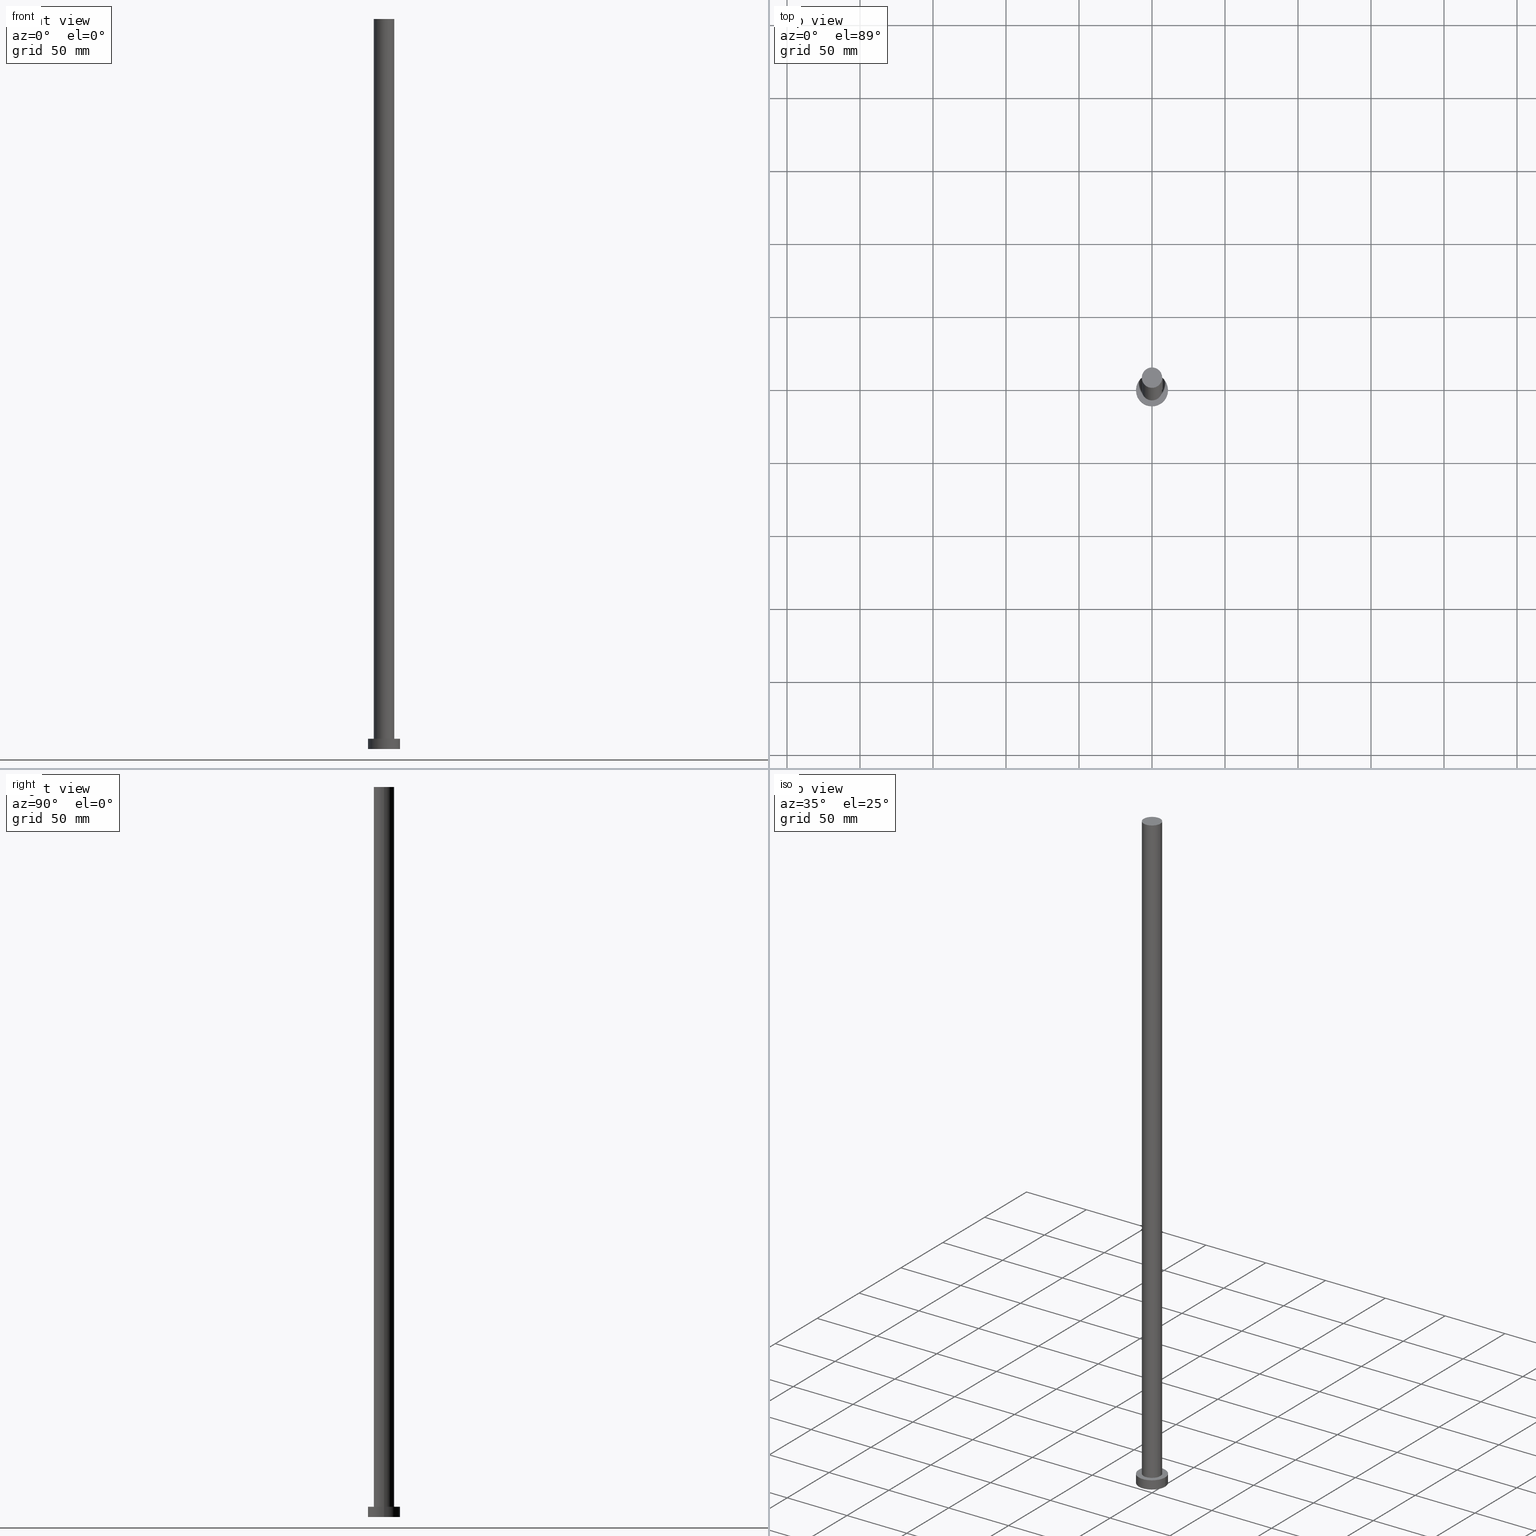
[diagram: canonical four-view strip — front | top / right | iso, engineering-drawing reading convention]
A machine part, canonical four-view strip (front | top / right | iso — engineering-drawing reading convention). The complete STEP part file that produces these views, byte-faithful:
ISO-10303-21;
HEADER;
FILE_DESCRIPTION (( 'STEP AP203' ),
    '1' );
FILE_NAME ('988a.STEP',
    '2023-02-13T08:54:24',
    ( '' ),
    ( '' ),
    'SwSTEP 2.0',
    'SolidWorks 2019',
    '' );
FILE_SCHEMA (( 'CONFIG_CONTROL_DESIGN' ));
ENDSEC;

DATA;
#1 = CARTESIAN_POINT ( 'NONE',  ( 0.000000000000000000, 0.000000000000000000, 0.000000000000000000 ) ) ;
#2 = PRODUCT ( '988a', '988a', '', ( #247 ) ) ;
#3 = AXIS2_PLACEMENT_3D ( 'NONE', #177, #134, #78 ) ;
#4 = DATE_AND_TIME ( #96, #98 ) ;
#5 = PERSON_AND_ORGANIZATION ( #62, #211 ) ;
#6 = PERSON_AND_ORGANIZATION ( #62, #211 ) ;
#7 = DIRECTION ( 'NONE',  ( 0.000000000000000000, 0.000000000000000000, 1.000000000000000000 ) ) ;
#8 = EDGE_LOOP ( 'NONE', ( #123, #255, #244, #43 ) ) ;
#9 = CARTESIAN_POINT ( 'NONE',  ( 0.000000000000000000, 0.000000000000000000, 0.000000000000000000 ) ) ;
#10 = APPROVAL_PERSON_ORGANIZATION ( #99, #222, #137 ) ;
#11 = APPROVAL_PERSON_ORGANIZATION ( #249, #176, #172 ) ;
#12 = DIRECTION ( 'NONE',  ( 1.000000000000000000, 0.000000000000000000, 0.000000000000000000 ) ) ;
#13 = VERTEX_POINT ( 'NONE', #170 ) ;
#14 = DATE_TIME_ROLE ( 'classification_date' ) ;
#15 = FACE_OUTER_BOUND ( 'NONE', #199, .T. ) ;
#16 = AXIS2_PLACEMENT_3D ( 'NONE', #113, #82, #114 ) ;
#17 = FACE_OUTER_BOUND ( 'NONE', #71, .T. ) ;
#18 = LOCAL_TIME ( 9, 54, 24.00000000000000000, #153 ) ;
#19 = EDGE_CURVE ( 'NONE', #141, #131, #232, .T. ) ;
#20 = DIRECTION ( 'NONE',  ( -0.000000000000000000, -0.000000000000000000, -1.000000000000000000 ) ) ;
#21 = CC_DESIGN_PERSON_AND_ORGANIZATION_ASSIGNMENT ( #61, #162, ( #2 ) ) ;
#22 = ORIENTED_EDGE ( 'NONE', *, *, #210, .F. ) ;
#23 = APPROVAL_DATE_TIME ( #121, #222 ) ;
#24 = DIRECTION ( 'NONE',  ( 0.000000000000000000, 0.000000000000000000, 1.000000000000000000 ) ) ;
#25 = CARTESIAN_POINT ( 'NONE',  ( 0.000000000000000000, 0.000000000000000000, 500.0000000000000000 ) ) ;
#26 = DATE_AND_TIME ( #80, #243 ) ;
#27 = ORIENTED_EDGE ( 'NONE', *, *, #210, .T. ) ;
#28 = APPLICATION_CONTEXT ( 'configuration controlled 3d designs of mechanical parts and assemblies' ) ;
#29 = LINE ( 'NONE', #173, #60 ) ;
#30 = CC_DESIGN_DATE_AND_TIME_ASSIGNMENT ( #35, #14, ( #182 ) ) ;
#31 = DIRECTION ( 'NONE',  ( -0.000000000000000000, -0.000000000000000000, -1.000000000000000000 ) ) ;
#32 = DIRECTION ( 'NONE',  ( 0.000000000000000000, 0.000000000000000000, 1.000000000000000000 ) ) ;
#33 = CC_DESIGN_APPROVAL ( #176, ( #191 ) ) ;
#34 = ORIENTED_EDGE ( 'NONE', *, *, #81, .F. ) ;
#35 = DATE_AND_TIME ( #108, #18 ) ;
#36 = DIRECTION ( 'NONE',  ( 1.000000000000000000, 0.000000000000000000, 0.000000000000000000 ) ) ;
#37 = APPROVAL ( #149, 'NEUR�EN�' ) ;
#38 = AXIS2_PLACEMENT_3D ( 'NONE', #235, #237, #54 ) ;
#39 = CYLINDRICAL_SURFACE ( 'NONE', #75, 7.000000000000000888 ) ;
#40 = COORDINATED_UNIVERSAL_TIME_OFFSET ( 1, 0, .AHEAD. ) ;
#41 = AXIS2_PLACEMENT_3D ( 'NONE', #68, #128, #88 ) ;
#42 = DIRECTION ( 'NONE',  ( 1.000000000000000000, 0.000000000000000000, 0.000000000000000000 ) ) ;
#43 = ORIENTED_EDGE ( 'NONE', *, *, #158, .F. ) ;
#44 = APPROVAL_STATUS ( 'not_yet_approved' ) ;
#45 = ORIENTED_EDGE ( 'NONE', *, *, #109, .T. ) ;
#46 = CARTESIAN_POINT ( 'NONE',  ( 7.000000000000000888, 8.572527594031474176E-16, 7.000000000000000000 ) ) ;
#47 = AXIS2_PLACEMENT_3D ( 'NONE', #168, #100, #229 ) ;
#48 = VERTEX_POINT ( 'NONE', #126 ) ;
#49 = LOCAL_TIME ( 9, 54, 24.00000000000000000, #217 ) ;
#50 = ORIENTED_EDGE ( 'NONE', *, *, #142, .T. ) ;
#51 = CARTESIAN_POINT ( 'NONE',  ( -7.000000000000000888, 0.000000000000000000, 500.0000000000000000 ) ) ;
#52 = CYLINDRICAL_SURFACE ( 'NONE', #155, 7.000000000000000888 ) ;
#53 = PERSON_AND_ORGANIZATION ( #62, #211 ) ;
#54 = DIRECTION ( 'NONE',  ( 1.000000000000000000, 0.000000000000000000, -0.000000000000000000 ) ) ;
#55 = LINE ( 'NONE', #194, #208 ) ;
#56 = EDGE_CURVE ( 'NONE', #13, #131, #152, .T. ) ;
#57 = CIRCLE ( 'NONE', #3, 7.000000000000000888 ) ;
#58 = ORIENTED_EDGE ( 'NONE', *, *, #64, .T. ) ;
#59 = DIRECTION ( 'NONE',  ( 1.000000000000000000, 0.000000000000000000, 0.000000000000000000 ) ) ;
#60 = VECTOR ( 'NONE', #101, 1000.000000000000000 ) ;
#61 = PERSON_AND_ORGANIZATION ( #62, #211 ) ;
#62 = PERSON ( 'NEUR�EN�', 'NEUR�EN�', 'NEUR�EN�', ('NEUR�EN�'), ('NEUR�EN�'), ('NEUR�EN�') ) ;
#63 = APPROVAL_STATUS ( 'not_yet_approved' ) ;
#64 = EDGE_CURVE ( 'NONE', #48, #13, #70, .T. ) ;
#65 = ADVANCED_FACE ( 'NONE', ( #186 ), #250, .T. ) ;
#66 = CARTESIAN_POINT ( 'NONE',  ( 0.000000000000000000, 0.000000000000000000, 7.000000000000000000 ) ) ;
#67 = ADVANCED_BREP_SHAPE_REPRESENTATION ( '988a', ( #200, #92 ), #143 ) ;
#68 = CARTESIAN_POINT ( 'NONE',  ( 0.000000000000000000, 0.000000000000000000, 7.000000000000000000 ) ) ;
#69 = DIRECTION ( 'NONE',  ( 0.000000000000000000, 0.000000000000000000, 1.000000000000000000 ) ) ;
#70 = CIRCLE ( 'NONE', #47, 11.00000000000000000 ) ;
#71 = EDGE_LOOP ( 'NONE', ( #204, #221 ) ) ;
#72 = CARTESIAN_POINT ( 'NONE',  ( -11.00000000000000000, 0.000000000000000000, 7.000000000000000000 ) ) ;
#73 = PRODUCT_RELATED_PRODUCT_CATEGORY ( 'detail', '', ( #2 ) ) ;
#74 = LINE ( 'NONE', #72, #228 ) ;
#75 = AXIS2_PLACEMENT_3D ( 'NONE', #25, #203, #79 ) ;
#76 = DIRECTION ( 'NONE',  ( 0.000000000000000000, 0.000000000000000000, 1.000000000000000000 ) ) ;
#77 = AXIS2_PLACEMENT_3D ( 'NONE', #254, #69, #193 ) ;
#78 = DIRECTION ( 'NONE',  ( 1.000000000000000000, 0.000000000000000000, 0.000000000000000000 ) ) ;
#79 = DIRECTION ( 'NONE',  ( -1.000000000000000000, 0.000000000000000000, 0.000000000000000000 ) ) ;
#80 = CALENDAR_DATE ( 2023, 13, 2 ) ;
#81 = EDGE_CURVE ( 'NONE', #105, #233, #180, .T. ) ;
#82 = DIRECTION ( 'NONE',  ( 0.000000000000000000, 0.000000000000000000, 1.000000000000000000 ) ) ;
#83 = SECURITY_CLASSIFICATION_LEVEL ( 'unclassified' ) ;
#84 = EDGE_CURVE ( 'NONE', #97, #105, #29, .T. ) ;
#85 = PERSON_AND_ORGANIZATION ( #62, #211 ) ;
#86 = ORIENTED_EDGE ( 'NONE', *, *, #19, .T. ) ;
#87 = CARTESIAN_POINT ( 'NONE',  ( -7.000000000000000888, 0.000000000000000000, 7.000000000000000000 ) ) ;
#88 = DIRECTION ( 'NONE',  ( -1.000000000000000000, 0.000000000000000000, 0.000000000000000000 ) ) ;
#89 = EDGE_LOOP ( 'NONE', ( #192, #238, #205, #209 ) ) ;
#90 = DATE_AND_TIME ( #175, #125 ) ;
#91 = DIRECTION ( 'NONE',  ( 1.000000000000000000, 0.000000000000000000, -0.000000000000000000 ) ) ;
#92 = AXIS2_PLACEMENT_3D ( 'NONE', #183, #7, #42 ) ;
#93 = CC_DESIGN_APPROVAL ( #37, ( #182 ) ) ;
#94 = PLANE ( 'NONE',  #120 ) ;
#95 = APPLICATION_PROTOCOL_DEFINITION ( 'international standard', 'config_control_design', 1994, #216 ) ;
#96 = CALENDAR_DATE ( 2023, 13, 2 ) ;
#97 = VERTEX_POINT ( 'NONE', #51 ) ;
#98 = LOCAL_TIME ( 9, 54, 24.00000000000000000, #40 ) ;
#99 = PERSON_AND_ORGANIZATION ( #62, #211 ) ;
#100 = DIRECTION ( 'NONE',  ( 0.000000000000000000, 0.000000000000000000, 1.000000000000000000 ) ) ;
#101 = DIRECTION ( 'NONE',  ( -0.000000000000000000, -0.000000000000000000, -1.000000000000000000 ) ) ;
#102 = APPROVAL_ROLE ( '' ) ;
#103 = DIRECTION ( 'NONE',  ( -1.000000000000000000, 0.000000000000000000, 0.000000000000000000 ) ) ;
#104 = ADVANCED_FACE ( 'NONE', ( #127 ), #52, .T. ) ;
#105 = VERTEX_POINT ( 'NONE', #87 ) ;
#106 = ADVANCED_FACE ( 'NONE', ( #171 ), #252, .T. ) ;
#107 = DIRECTION ( 'NONE',  ( 0.000000000000000000, 0.000000000000000000, 1.000000000000000000 ) ) ;
#108 = CALENDAR_DATE ( 2023, 13, 2 ) ;
#109 = EDGE_CURVE ( 'NONE', #97, #225, #112, .T. ) ;
#110 = AXIS2_PLACEMENT_3D ( 'NONE', #136, #242, #181 ) ;
#111 = CARTESIAN_POINT ( 'NONE',  ( 11.00000000000000000, 1.347111479062088405E-15, 0.000000000000000000 ) ) ;
#112 = CIRCLE ( 'NONE', #77, 7.000000000000000888 ) ;
#113 = CARTESIAN_POINT ( 'NONE',  ( 0.000000000000000000, 0.000000000000000000, 500.0000000000000000 ) ) ;
#114 = DIRECTION ( 'NONE',  ( 1.000000000000000000, 0.000000000000000000, -0.000000000000000000 ) ) ;
#115 = PRODUCT_DEFINITION ( 'NEZN�M�', '', #191, #214 ) ;
#116 = EDGE_CURVE ( 'NONE', #13, #48, #220, .T. ) ;
#117 = CALENDAR_DATE ( 2023, 13, 2 ) ;
#118 = EDGE_LOOP ( 'NONE', ( #34, #148 ) ) ;
#119 = PRODUCT_DEFINITION_SHAPE ( 'NONE', 'NONE',  #115 ) ;
#120 = AXIS2_PLACEMENT_3D ( 'NONE', #1, #76, #91 ) ;
#121 = DATE_AND_TIME ( #117, #49 ) ;
#122 = FACE_OUTER_BOUND ( 'NONE', #163, .T. ) ;
#123 = ORIENTED_EDGE ( 'NONE', *, *, #116, .F. ) ;
#124 = ORIENTED_EDGE ( 'NONE', *, *, #64, .F. ) ;
#125 = LOCAL_TIME ( 9, 54, 24.00000000000000000, #129 ) ;
#126 = CARTESIAN_POINT ( 'NONE',  ( -11.00000000000000000, 0.000000000000000000, 7.000000000000000000 ) ) ;
#127 = FACE_OUTER_BOUND ( 'NONE', #201, .T. ) ;
#128 = DIRECTION ( 'NONE',  ( -0.000000000000000000, -0.000000000000000000, -1.000000000000000000 ) ) ;
#129 = COORDINATED_UNIVERSAL_TIME_OFFSET ( 1, 0, .AHEAD. ) ;
#130 = CC_DESIGN_APPROVAL ( #222, ( #115 ) ) ;
#131 = VERTEX_POINT ( 'NONE', #111 ) ;
#132 = SHAPE_DEFINITION_REPRESENTATION ( #119, #67 ) ;
#133 = APPROVAL_DATE_TIME ( #90, #37 ) ;
#134 = DIRECTION ( 'NONE',  ( 0.000000000000000000, 0.000000000000000000, 1.000000000000000000 ) ) ;
#135 = ORIENTED_EDGE ( 'NONE', *, *, #116, .T. ) ;
#136 = CARTESIAN_POINT ( 'NONE',  ( 0.000000000000000000, 0.000000000000000000, 0.000000000000000000 ) ) ;
#137 = APPROVAL_ROLE ( '' ) ;
#138 =( LENGTH_UNIT ( ) NAMED_UNIT ( * ) SI_UNIT ( .MILLI., .METRE. ) );
#139 = AXIS2_PLACEMENT_3D ( 'NONE', #240, #241, #36 ) ;
#140 =( NAMED_UNIT ( * ) SI_UNIT ( $, .STERADIAN. ) SOLID_ANGLE_UNIT ( ) );
#141 = VERTEX_POINT ( 'NONE', #215 ) ;
#142 = EDGE_CURVE ( 'NONE', #225, #233, #55, .T. ) ;
#143 =( GEOMETRIC_REPRESENTATION_CONTEXT ( 3 ) GLOBAL_UNCERTAINTY_ASSIGNED_CONTEXT ( ( #157 ) ) GLOBAL_UNIT_ASSIGNED_CONTEXT ( ( #138, #164, #140 ) ) REPRESENTATION_CONTEXT ( 'NONE', 'WORKASPACE' ) );
#144 = EDGE_LOOP ( 'NONE', ( #212, #124, #174, #86 ) ) ;
#145 = CLOSED_SHELL ( 'NONE', ( #104, #65, #106, #167, #161, #224, #219 ) ) ;
#146 = CC_DESIGN_PERSON_AND_ORGANIZATION_ASSIGNMENT ( #165, #253, ( #182 ) ) ;
#147 = CC_DESIGN_DATE_AND_TIME_ASSIGNMENT ( #4, #245, ( #115 ) ) ;
#148 = ORIENTED_EDGE ( 'NONE', *, *, #231, .F. ) ;
#149 = APPROVAL_STATUS ( 'not_yet_approved' ) ;
#150 = ORIENTED_EDGE ( 'NONE', *, *, #84, .F. ) ;
#151 = DIRECTION ( 'NONE',  ( 1.000000000000000000, 0.000000000000000000, 0.000000000000000000 ) ) ;
#152 = LINE ( 'NONE', #227, #160 ) ;
#153 = COORDINATED_UNIVERSAL_TIME_OFFSET ( 1, 0, .AHEAD. ) ;
#154 = PLANE ( 'NONE',  #38 ) ;
#155 = AXIS2_PLACEMENT_3D ( 'NONE', #207, #31, #103 ) ;
#156 = CC_DESIGN_SECURITY_CLASSIFICATION ( #182, ( #191 ) ) ;
#157 = UNCERTAINTY_MEASURE_WITH_UNIT (LENGTH_MEASURE( 1.000000000000000082E-05 ), #138, 'distance_accuracy_value', 'NONE');
#158 = EDGE_CURVE ( 'NONE', #48, #141, #74, .T. ) ;
#159 = PLANE ( 'NONE',  #16 ) ;
#160 = VECTOR ( 'NONE', #188, 1000.000000000000000 ) ;
#161 = ADVANCED_FACE ( 'NONE', ( #17 ), #94, .F. ) ;
#162 = PERSON_AND_ORGANIZATION_ROLE ( 'design_owner' ) ;
#163 = EDGE_LOOP ( 'NONE', ( #45, #27 ) ) ;
#164 =( NAMED_UNIT ( * ) PLANE_ANGLE_UNIT ( ) SI_UNIT ( $, .RADIAN. ) );
#165 = PERSON_AND_ORGANIZATION ( #62, #211 ) ;
#166 = PERSON_AND_ORGANIZATION_ROLE ( 'creator' ) ;
#167 = ADVANCED_FACE ( 'NONE', ( #213, #15 ), #154, .T. ) ;
#168 = CARTESIAN_POINT ( 'NONE',  ( 0.000000000000000000, 0.000000000000000000, 7.000000000000000000 ) ) ;
#169 = PERSON_AND_ORGANIZATION_ROLE ( 'design_supplier' ) ;
#170 = CARTESIAN_POINT ( 'NONE',  ( 11.00000000000000000, 1.347111479062088405E-15, 7.000000000000000000 ) ) ;
#171 = FACE_OUTER_BOUND ( 'NONE', #144, .T. ) ;
#172 = APPROVAL_ROLE ( '' ) ;
#173 = CARTESIAN_POINT ( 'NONE',  ( -7.000000000000000888, 0.000000000000000000, 500.0000000000000000 ) ) ;
#174 = ORIENTED_EDGE ( 'NONE', *, *, #158, .T. ) ;
#175 = CALENDAR_DATE ( 2023, 13, 2 ) ;
#176 = APPROVAL ( #63, 'NEUR�EN�' ) ;
#177 = CARTESIAN_POINT ( 'NONE',  ( 0.000000000000000000, 0.000000000000000000, 500.0000000000000000 ) ) ;
#178 = AXIS2_PLACEMENT_3D ( 'NONE', #179, #24, #59 ) ;
#179 = CARTESIAN_POINT ( 'NONE',  ( 0.000000000000000000, 0.000000000000000000, 7.000000000000000000 ) ) ;
#180 = CIRCLE ( 'NONE', #248, 7.000000000000000888 ) ;
#181 = DIRECTION ( 'NONE',  ( 1.000000000000000000, 0.000000000000000000, 0.000000000000000000 ) ) ;
#182 = SECURITY_CLASSIFICATION ( '', '', #83 ) ;
#183 = CARTESIAN_POINT ( 'NONE',  ( 0.000000000000000000, 0.000000000000000000, 0.000000000000000000 ) ) ;
#184 = CARTESIAN_POINT ( 'NONE',  ( 7.000000000000000888, 8.572527594031474176E-16, 500.0000000000000000 ) ) ;
#185 = PERSON_AND_ORGANIZATION_ROLE ( 'creator' ) ;
#186 = FACE_OUTER_BOUND ( 'NONE', #8, .T. ) ;
#187 = CC_DESIGN_PERSON_AND_ORGANIZATION_ASSIGNMENT ( #85, #169, ( #191 ) ) ;
#188 = DIRECTION ( 'NONE',  ( -0.000000000000000000, -0.000000000000000000, -1.000000000000000000 ) ) ;
#189 = ORIENTED_EDGE ( 'NONE', *, *, #231, .T. ) ;
#190 = CIRCLE ( 'NONE', #110, 11.00000000000000000 ) ;
#191 = PRODUCT_DEFINITION_FORMATION_WITH_SPECIFIED_SOURCE ( 'LIBOVOLN�', '', #2, .NOT_KNOWN. ) ;
#192 = ORIENTED_EDGE ( 'NONE', *, *, #142, .F. ) ;
#193 = DIRECTION ( 'NONE',  ( 1.000000000000000000, 0.000000000000000000, 0.000000000000000000 ) ) ;
#194 = CARTESIAN_POINT ( 'NONE',  ( 7.000000000000000888, 8.572527594031474176E-16, 500.0000000000000000 ) ) ;
#195 = AXIS2_PLACEMENT_3D ( 'NONE', #66, #206, #230 ) ;
#196 = CC_DESIGN_PERSON_AND_ORGANIZATION_ASSIGNMENT ( #6, #166, ( #115 ) ) ;
#197 = DIRECTION ( 'NONE',  ( -0.000000000000000000, -0.000000000000000000, -1.000000000000000000 ) ) ;
#198 = COORDINATED_UNIVERSAL_TIME_OFFSET ( 1, 0, .AHEAD. ) ;
#199 = EDGE_LOOP ( 'NONE', ( #58, #135 ) ) ;
#200 = MANIFOLD_SOLID_BREP ( 'P�idat vysunut�m3', #145 ) ;
#201 = EDGE_LOOP ( 'NONE', ( #22, #50, #189, #150 ) ) ;
#202 = FACE_OUTER_BOUND ( 'NONE', #89, .T. ) ;
#203 = DIRECTION ( 'NONE',  ( -0.000000000000000000, -0.000000000000000000, -1.000000000000000000 ) ) ;
#204 = ORIENTED_EDGE ( 'NONE', *, *, #19, .F. ) ;
#205 = ORIENTED_EDGE ( 'NONE', *, *, #84, .T. ) ;
#206 = DIRECTION ( 'NONE',  ( -0.000000000000000000, -0.000000000000000000, -1.000000000000000000 ) ) ;
#207 = CARTESIAN_POINT ( 'NONE',  ( 0.000000000000000000, 0.000000000000000000, 500.0000000000000000 ) ) ;
#208 = VECTOR ( 'NONE', #197, 1000.000000000000000 ) ;
#209 = ORIENTED_EDGE ( 'NONE', *, *, #81, .T. ) ;
#210 = EDGE_CURVE ( 'NONE', #225, #97, #57, .T. ) ;
#211 = ORGANIZATION ( 'NEUR�EN�', 'NEUR�EN�', '' ) ;
#212 = ORIENTED_EDGE ( 'NONE', *, *, #56, .F. ) ;
#213 = FACE_BOUND ( 'NONE', #118, .T. ) ;
#214 = DESIGN_CONTEXT ( 'detailed design', #28, 'design' ) ;
#215 = CARTESIAN_POINT ( 'NONE',  ( -11.00000000000000000, 0.000000000000000000, 0.000000000000000000 ) ) ;
#216 = APPLICATION_CONTEXT ( 'configuration controlled 3d designs of mechanical parts and assemblies' ) ;
#217 = COORDINATED_UNIVERSAL_TIME_OFFSET ( 1, 0, .AHEAD. ) ;
#218 = APPLICATION_PROTOCOL_DEFINITION ( 'international standard', 'config_control_design', 1994, #28 ) ;
#219 = ADVANCED_FACE ( 'NONE', ( #122 ), #159, .T. ) ;
#220 = CIRCLE ( 'NONE', #139, 11.00000000000000000 ) ;
#221 = ORIENTED_EDGE ( 'NONE', *, *, #226, .F. ) ;
#222 = APPROVAL ( #44, 'NEUR�EN�' ) ;
#223 = CIRCLE ( 'NONE', #178, 7.000000000000000888 ) ;
#224 = ADVANCED_FACE ( 'NONE', ( #202 ), #39, .T. ) ;
#225 = VERTEX_POINT ( 'NONE', #184 ) ;
#226 = EDGE_CURVE ( 'NONE', #131, #141, #190, .T. ) ;
#227 = CARTESIAN_POINT ( 'NONE',  ( 11.00000000000000000, 1.347111479062088405E-15, 7.000000000000000000 ) ) ;
#228 = VECTOR ( 'NONE', #20, 1000.000000000000000 ) ;
#229 = DIRECTION ( 'NONE',  ( 1.000000000000000000, 0.000000000000000000, 0.000000000000000000 ) ) ;
#230 = DIRECTION ( 'NONE',  ( -1.000000000000000000, 0.000000000000000000, 0.000000000000000000 ) ) ;
#231 = EDGE_CURVE ( 'NONE', #233, #105, #223, .T. ) ;
#232 = CIRCLE ( 'NONE', #236, 11.00000000000000000 ) ;
#233 = VERTEX_POINT ( 'NONE', #46 ) ;
#234 = CC_DESIGN_PERSON_AND_ORGANIZATION_ASSIGNMENT ( #5, #185, ( #191 ) ) ;
#235 = CARTESIAN_POINT ( 'NONE',  ( 0.000000000000000000, 0.000000000000000000, 7.000000000000000000 ) ) ;
#236 = AXIS2_PLACEMENT_3D ( 'NONE', #9, #107, #151 ) ;
#237 = DIRECTION ( 'NONE',  ( 0.000000000000000000, 0.000000000000000000, 1.000000000000000000 ) ) ;
#238 = ORIENTED_EDGE ( 'NONE', *, *, #109, .F. ) ;
#239 = APPROVAL_PERSON_ORGANIZATION ( #53, #37, #102 ) ;
#240 = CARTESIAN_POINT ( 'NONE',  ( 0.000000000000000000, 0.000000000000000000, 7.000000000000000000 ) ) ;
#241 = DIRECTION ( 'NONE',  ( 0.000000000000000000, 0.000000000000000000, 1.000000000000000000 ) ) ;
#242 = DIRECTION ( 'NONE',  ( 0.000000000000000000, 0.000000000000000000, 1.000000000000000000 ) ) ;
#243 = LOCAL_TIME ( 9, 54, 24.00000000000000000, #198 ) ;
#244 = ORIENTED_EDGE ( 'NONE', *, *, #226, .T. ) ;
#245 = DATE_TIME_ROLE ( 'creation_date' ) ;
#246 = APPROVAL_DATE_TIME ( #26, #176 ) ;
#247 = MECHANICAL_CONTEXT ( 'NONE', #216, 'mechanical' ) ;
#248 = AXIS2_PLACEMENT_3D ( 'NONE', #251, #32, #12 ) ;
#249 = PERSON_AND_ORGANIZATION ( #62, #211 ) ;
#250 = CYLINDRICAL_SURFACE ( 'NONE', #195, 11.00000000000000000 ) ;
#251 = CARTESIAN_POINT ( 'NONE',  ( 0.000000000000000000, 0.000000000000000000, 7.000000000000000000 ) ) ;
#252 = CYLINDRICAL_SURFACE ( 'NONE', #41, 11.00000000000000000 ) ;
#253 = PERSON_AND_ORGANIZATION_ROLE ( 'classification_officer' ) ;
#254 = CARTESIAN_POINT ( 'NONE',  ( 0.000000000000000000, 0.000000000000000000, 500.0000000000000000 ) ) ;
#255 = ORIENTED_EDGE ( 'NONE', *, *, #56, .T. ) ;
ENDSEC;
END-ISO-10303-21;
